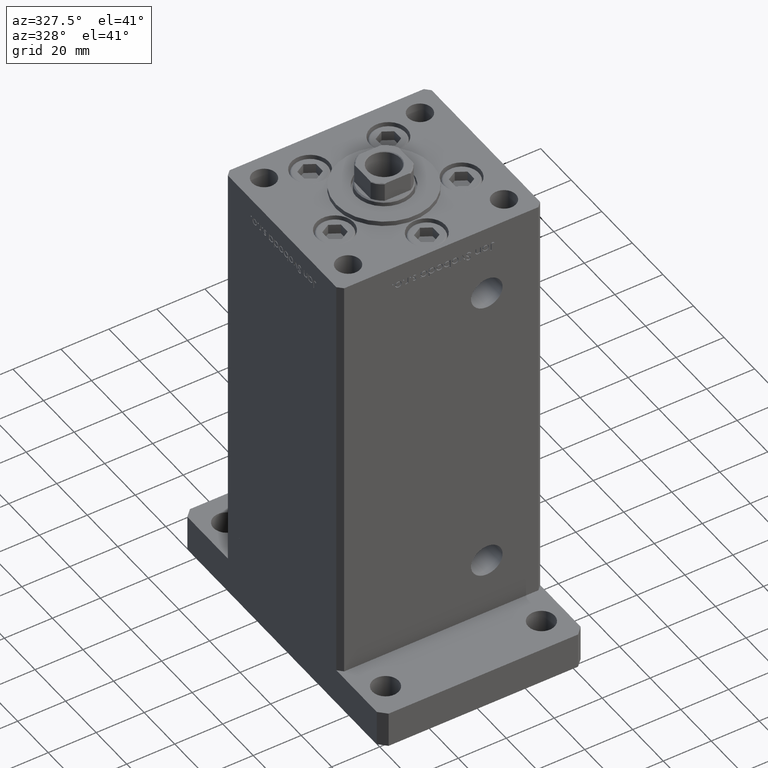
[diagram: clean part render]
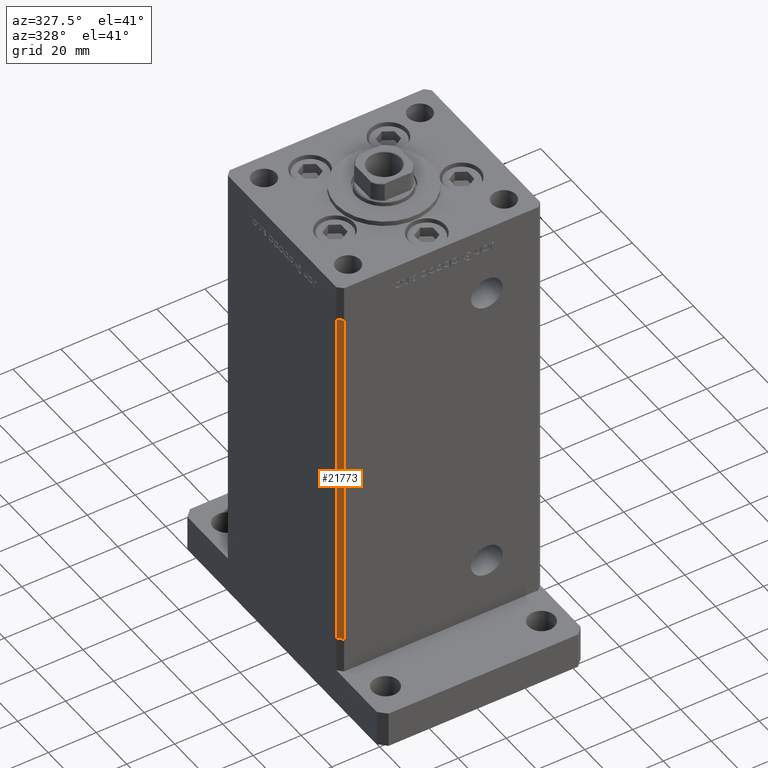
[diagram: same view with one face highlighted and labeled with its STEP entity id]
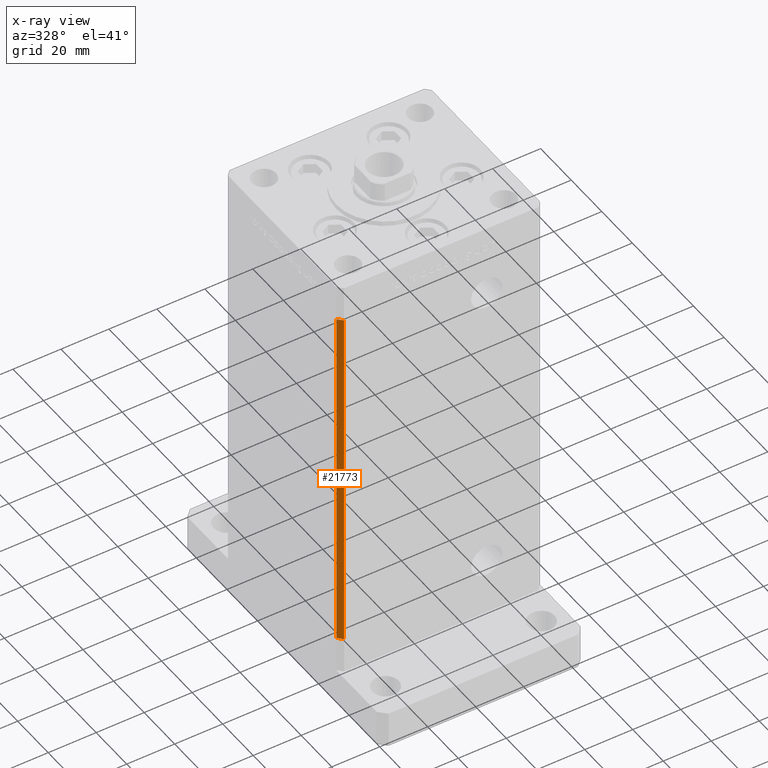
[diagram: x-ray of the same camera — body ghosted, the highlighted face saturated]
A machine part, auxiliary view. The second image highlights one B-rep face of the part: STEP entity #21773.
The next image is the same camera in x-ray: the body ghosted, the highlighted face saturated — about 0% of this face is hidden behind the body in this view.
In plain terms, the highlighted planar face has unit normal (0.7071, 0.7071, 0).
Its self-contained STEP definition (entity closure, byte-faithful):
#829 = LINE ( 'NONE', #50534, #1073 ) ;
#1073 = VECTOR ( 'NONE', #13334, 1000.000000000000000 ) ;
#2151 = ORIENTED_EDGE ( 'NONE', *, *, #22400, .T. ) ;
#2747 = CARTESIAN_POINT ( 'NONE',  ( -42.49999999999998579, -35.50000000000000711, 148.5000000000000000 ) ) ;
#2827 = LINE ( 'NONE', #35942, #35606 ) ;
#7052 = DIRECTION ( 'NONE',  ( -0.7071067811865474617, 0.7071067811865474617, 0.000000000000000000 ) ) ;
#7071 = CARTESIAN_POINT ( 'NONE',  ( -42.49999999999998579, -35.50000000000000711, 0.000000000000000000 ) ) ;
#10932 = EDGE_CURVE ( 'NONE', #23664, #51997, #36324, .T. ) ;
#11897 = CARTESIAN_POINT ( 'NONE',  ( -42.49999999999998579, -35.50000000000000711, 148.5000000000000000 ) ) ;
#13334 = DIRECTION ( 'NONE',  ( -0.000000000000000000, -0.000000000000000000, -1.000000000000000000 ) ) ;
#14923 = ORIENTED_EDGE ( 'NONE', *, *, #28370, .T. ) ;
#15986 = FACE_OUTER_BOUND ( 'NONE', #17185, .T. ) ;
#17185 = EDGE_LOOP ( 'NONE', ( #2151, #47641, #20436, #14923 ) ) ;
#17416 = VECTOR ( 'NONE', #40672, 1000.000000000000114 ) ;
#17914 = VERTEX_POINT ( 'NONE', #51898 ) ;
#20436 = ORIENTED_EDGE ( 'NONE', *, *, #10932, .F. ) ;
#21773 = ADVANCED_FACE ( 'NONE', ( #15986 ), #48025, .F. ) ;
#22400 = EDGE_CURVE ( 'NONE', #35346, #17914, #2827, .T. ) ;
#23664 = VERTEX_POINT ( 'NONE', #33286 ) ;
#25329 = EDGE_CURVE ( 'NONE', #51997, #17914, #829, .T. ) ;
#28370 = EDGE_CURVE ( 'NONE', #23664, #35346, #31793, .T. ) ;
#29642 = VECTOR ( 'NONE', #31254, 1000.000000000000000 ) ;
#30342 = CARTESIAN_POINT ( 'NONE',  ( -40.49999999999998579, -37.50000000000000711, 148.5000000000000000 ) ) ;
#31254 = DIRECTION ( 'NONE',  ( -0.000000000000000000, -0.000000000000000000, -1.000000000000000000 ) ) ;
#31793 = LINE ( 'NONE', #2747, #29642 ) ;
#33286 = CARTESIAN_POINT ( 'NONE',  ( -42.49999999999998579, -35.50000000000000711, 148.5000000000000000 ) ) ;
#35346 = VERTEX_POINT ( 'NONE', #7071 ) ;
#35606 = VECTOR ( 'NONE', #52796, 1000.000000000000114 ) ;
#35942 = CARTESIAN_POINT ( 'NONE',  ( -42.49999999999998579, -35.50000000000000711, 0.000000000000000000 ) ) ;
#36324 = LINE ( 'NONE', #11897, #17416 ) ;
#39960 = AXIS2_PLACEMENT_3D ( 'NONE', #52648, #44222, #7052 ) ;
#40672 = DIRECTION ( 'NONE',  ( 0.7071067811865474617, -0.7071067811865474617, 0.000000000000000000 ) ) ;
#44222 = DIRECTION ( 'NONE',  ( 0.7071067811865475727, 0.7071067811865475727, -0.000000000000000000 ) ) ;
#47641 = ORIENTED_EDGE ( 'NONE', *, *, #25329, .F. ) ;
#48025 = PLANE ( 'NONE',  #39960 ) ;
#50534 = CARTESIAN_POINT ( 'NONE',  ( -40.49999999999998579, -37.50000000000000711, 148.5000000000000000 ) ) ;
#51898 = CARTESIAN_POINT ( 'NONE',  ( -40.49999999999998579, -37.50000000000000711, 0.000000000000000000 ) ) ;
#51997 = VERTEX_POINT ( 'NONE', #30342 ) ;
#52648 = CARTESIAN_POINT ( 'NONE',  ( -42.49999999999998579, -35.50000000000000711, 148.5000000000000000 ) ) ;
#52796 = DIRECTION ( 'NONE',  ( 0.7071067811865474617, -0.7071067811865474617, 0.000000000000000000 ) ) ;